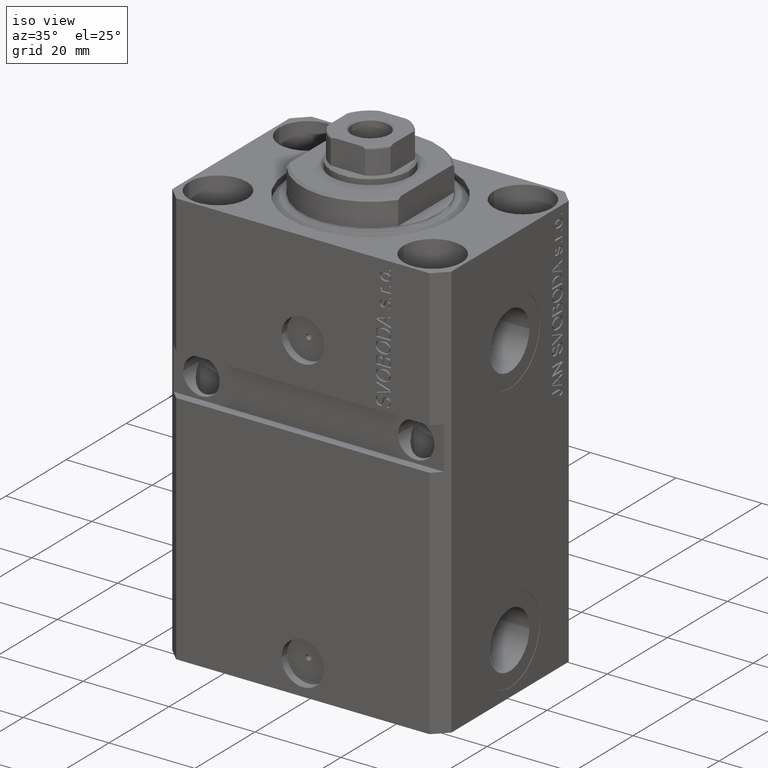
[diagram: clean part render]
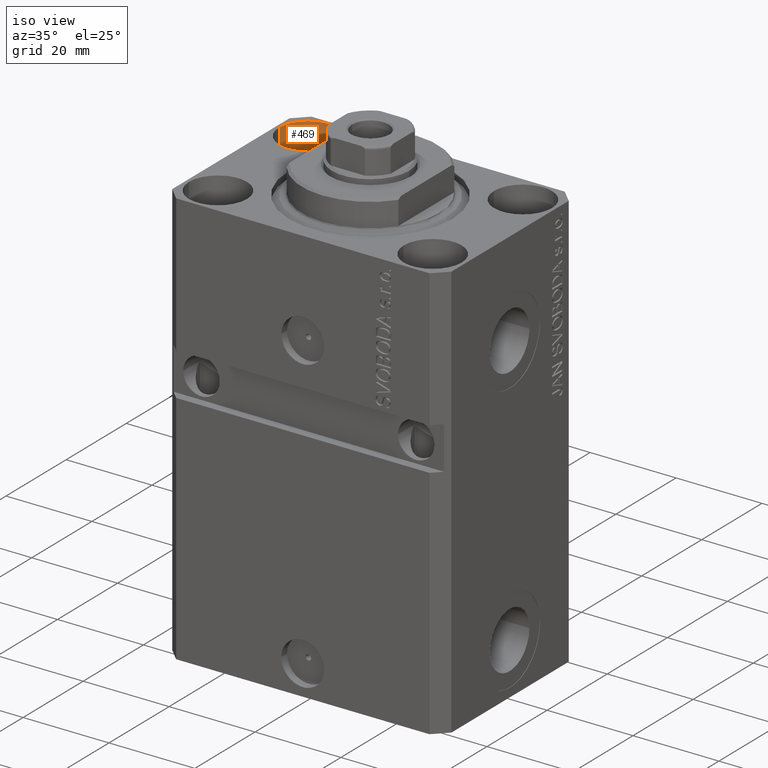
[diagram: same view with one face highlighted and labeled with its STEP entity id]
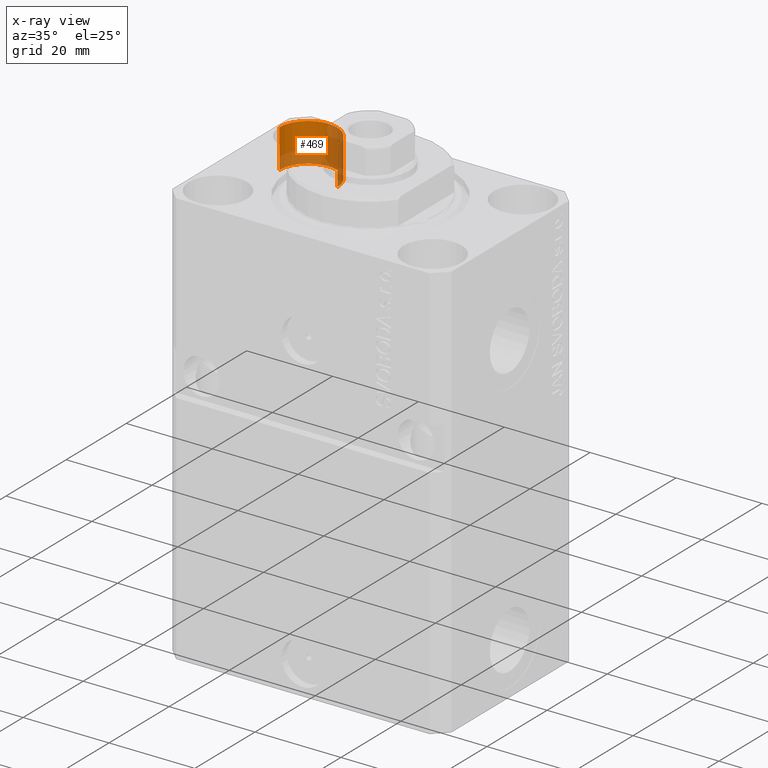
[diagram: x-ray of the same camera — body ghosted, the highlighted face saturated]
A machine part, iso view. The second image highlights one B-rep face of the part: STEP entity #469.
The next image is the same camera in x-ray: the body ghosted, the highlighted face saturated — about 54% of this face is hidden behind the body in this view.
In plain terms, the highlighted cylindrical surface (edge-blend (fillet) strip) has radius 6.75 mm, axis along (0, 0, 1).
Its self-contained STEP definition (entity closure, byte-faithful):
#469 = ADVANCED_FACE ( 'NONE', ( #10575 ), #43518, .F. ) ;
#1374 = AXIS2_PLACEMENT_3D ( 'NONE', #35971, #10645, #28612 ) ;
#2387 = DIRECTION ( 'NONE',  ( 0.000000000000000000, 0.000000000000000000, 1.000000000000000000 ) ) ;
#5385 = VERTEX_POINT ( 'NONE', #43797 ) ;
#10575 = FACE_OUTER_BOUND ( 'NONE', #34592, .T. ) ;
#10645 = DIRECTION ( 'NONE',  ( 0.000000000000000000, 0.000000000000000000, 1.000000000000000000 ) ) ;
#11095 = VERTEX_POINT ( 'NONE', #25434 ) ;
#13934 = EDGE_CURVE ( 'NONE', #11095, #5385, #24201, .T. ) ;
#13988 = ORIENTED_EDGE ( 'NONE', *, *, #29520, .T. ) ;
#19077 = CARTESIAN_POINT ( 'NONE',  ( -18.24999999997747224, 15.00000000000000000, -9.000000000000000000 ) ) ;
#20030 = ORIENTED_EDGE ( 'NONE', *, *, #13934, .F. ) ;
#21314 = EDGE_CURVE ( 'NONE', #21531, #11095, #34637, .T. ) ;
#21531 = VERTEX_POINT ( 'NONE', #19077 ) ;
#23759 = LINE ( 'NONE', #28294, #26102 ) ;
#23965 = CARTESIAN_POINT ( 'NONE',  ( -31.75000000002253842, 15.00000000000000000, -9.000000000000000000 ) ) ;
#24201 = LINE ( 'NONE', #23965, #28247 ) ;
#24276 = ORIENTED_EDGE ( 'NONE', *, *, #21314, .F. ) ;
#25420 = DIRECTION ( 'NONE',  ( -0.000000000000000000, -0.000000000000000000, 1.000000000000000000 ) ) ;
#25434 = CARTESIAN_POINT ( 'NONE',  ( -31.75000000002253842, 15.00000000000000000, -9.000000000000000000 ) ) ;
#26102 = VECTOR ( 'NONE', #42817, 1000.000000000000000 ) ;
#28247 = VECTOR ( 'NONE', #31339, 1000.000000000000000 ) ;
#28294 = CARTESIAN_POINT ( 'NONE',  ( -18.24999999997747224, 15.00000000000000000, -9.000000000000000000 ) ) ;
#28612 = DIRECTION ( 'NONE',  ( 1.000000000000000000, 0.000000000000000000, 0.000000000000000000 ) ) ;
#29492 = CARTESIAN_POINT ( 'NONE',  ( -18.24999999997747224, 15.00000000000000000, 0.000000000000000000 ) ) ;
#29520 = EDGE_CURVE ( 'NONE', #45194, #5385, #45607, .T. ) ;
#31339 = DIRECTION ( 'NONE',  ( -0.000000000000000000, -0.000000000000000000, 1.000000000000000000 ) ) ;
#32293 = AXIS2_PLACEMENT_3D ( 'NONE', #40640, #25420, #39956 ) ;
#32967 = ORIENTED_EDGE ( 'NONE', *, *, #42474, .T. ) ;
#34592 = EDGE_LOOP ( 'NONE', ( #20030, #24276, #32967, #13988 ) ) ;
#34637 = CIRCLE ( 'NONE', #41460, 6.750000000022533087 ) ;
#35971 = CARTESIAN_POINT ( 'NONE',  ( -25.00000000000000355, 15.00000000000000000, 0.000000000000000000 ) ) ;
#37969 = CARTESIAN_POINT ( 'NONE',  ( -25.00000000000000355, 15.00000000000000000, -9.000000000000000000 ) ) ;
#38917 = DIRECTION ( 'NONE',  ( 1.000000000000000000, 0.000000000000000000, 0.000000000000000000 ) ) ;
#39956 = DIRECTION ( 'NONE',  ( 1.000000000000000000, 0.000000000000000000, 0.000000000000000000 ) ) ;
#40640 = CARTESIAN_POINT ( 'NONE',  ( -25.00000000000000355, 15.00000000000000000, -9.000000000000000000 ) ) ;
#41460 = AXIS2_PLACEMENT_3D ( 'NONE', #37969, #2387, #38917 ) ;
#42474 = EDGE_CURVE ( 'NONE', #21531, #45194, #23759, .T. ) ;
#42817 = DIRECTION ( 'NONE',  ( -0.000000000000000000, -0.000000000000000000, 1.000000000000000000 ) ) ;
#43518 = CYLINDRICAL_SURFACE ( 'NONE', #32293, 6.750000000022533087 ) ;
#43797 = CARTESIAN_POINT ( 'NONE',  ( -31.75000000002253842, 15.00000000000000000, 0.000000000000000000 ) ) ;
#45194 = VERTEX_POINT ( 'NONE', #29492 ) ;
#45607 = CIRCLE ( 'NONE', #1374, 6.750000000022533087 ) ;